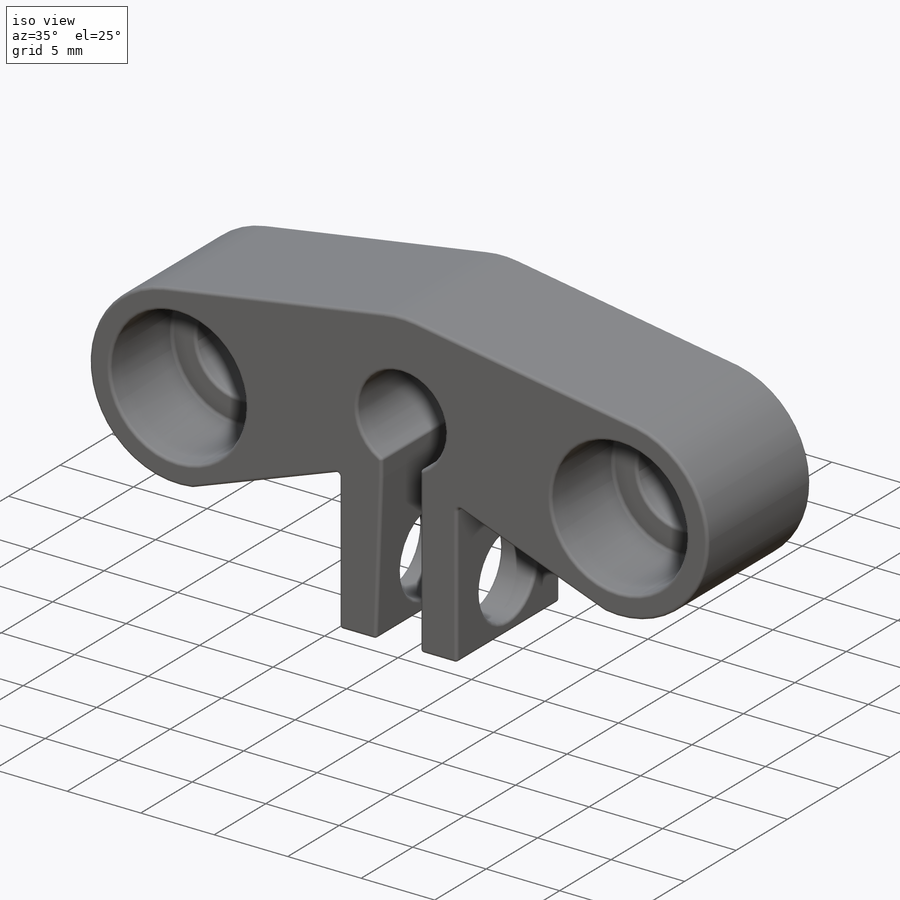
[diagram: iso view]
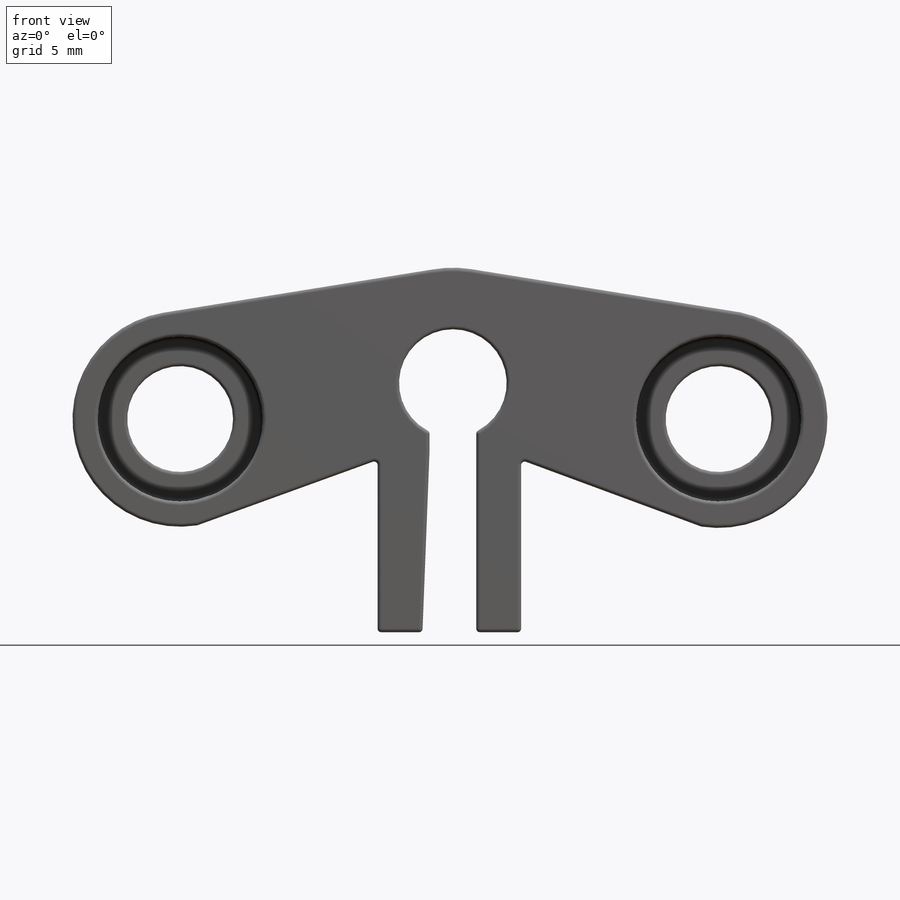
[diagram: front view]
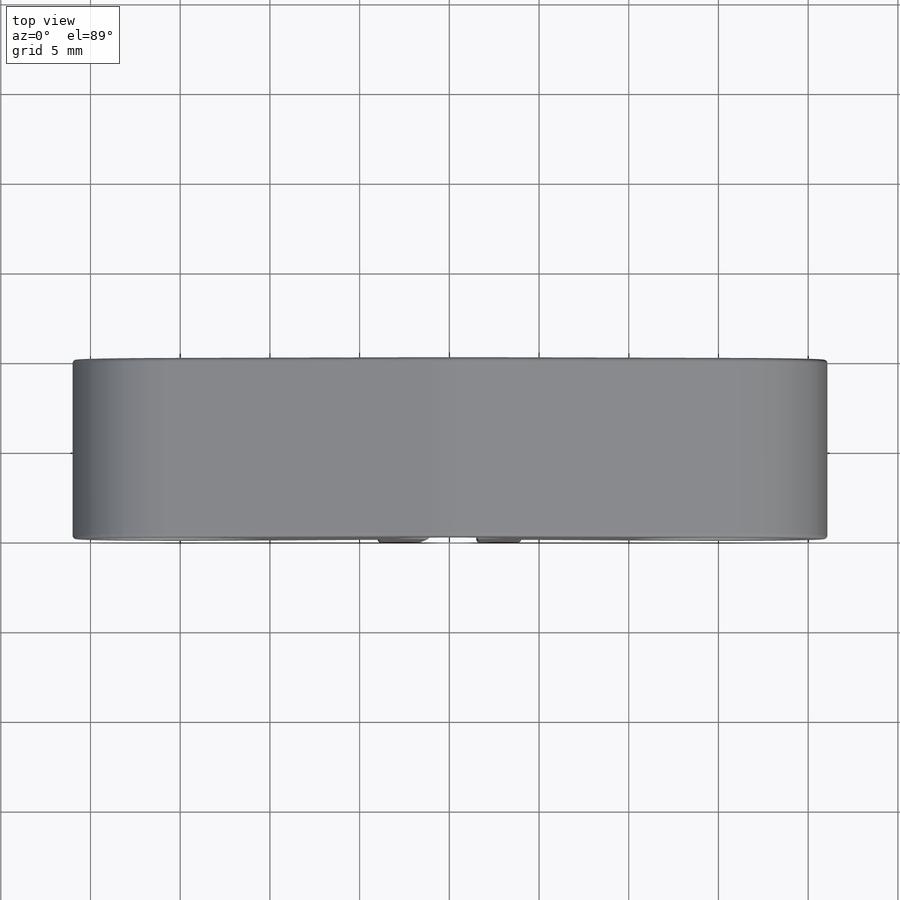
[diagram: top view]
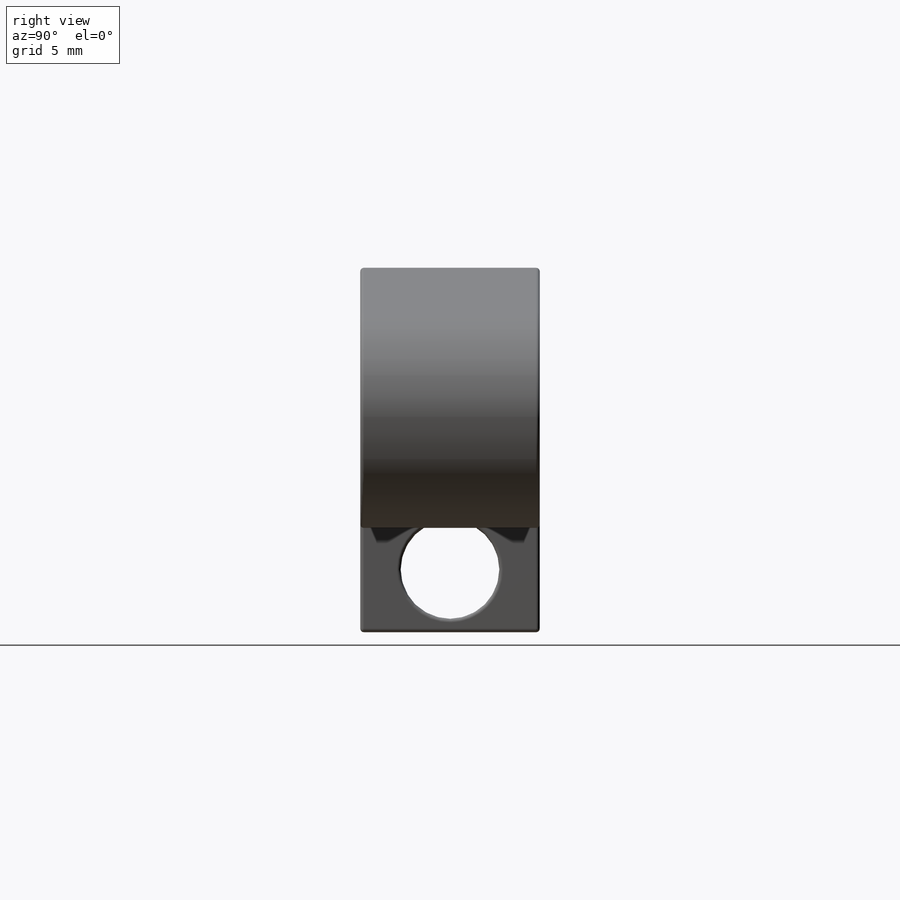
[diagram: right view]
SOLIDWORKS PART (.sldprt)
format: sldprt  version: not decoded by parser v0  size: 468,480 bytes
history: native  units: mm
features: plane x3, sketch x3, cut_extrude x2, material x1, extrude x1, fillet x1 (+9 scaffold rows collapsed)
feature tree (20):
  scaffold x9  (default folders/planes/origin — collapsed)
  material  "Material <sin especificar>"
  plane  "Alzado"
  plane  "Planta"
  plane  "Vista lateral"
  sketch  "Croquis23"  dims[c1.D2=6.9mm c1.D3=4.0mm c2.D2=4.0mm c2.D5=6.0mm c2.D6=3.0mm c3.D2=3.0mm c3.D3=2.5mm c3.D4=10.0mm c3.D1=0.0mm]
  extrude  "Saliente-Extruir9"  Depth=10mm
  sketch  "Croquis24"  dims[D1=9.2mm]
  cut_extrude  "Cortar-Extruir1"  Depth=6mm
  sketch  "Croquis26"  dims[D1=5.5mm D4=9.0mm D2=3.5mm D3=5.0mm]
  cut_extrude  "Cortar-Extruir2"  [1 undecoded]
  fillet  "Redondeo1"  Radius=0.2mm
decode coverage: 6 of 7 modeling features carry decoded parameters
note: 1 parameter value undecoded
note: suppression state not decoded; provenance and decode notes live in map.json
